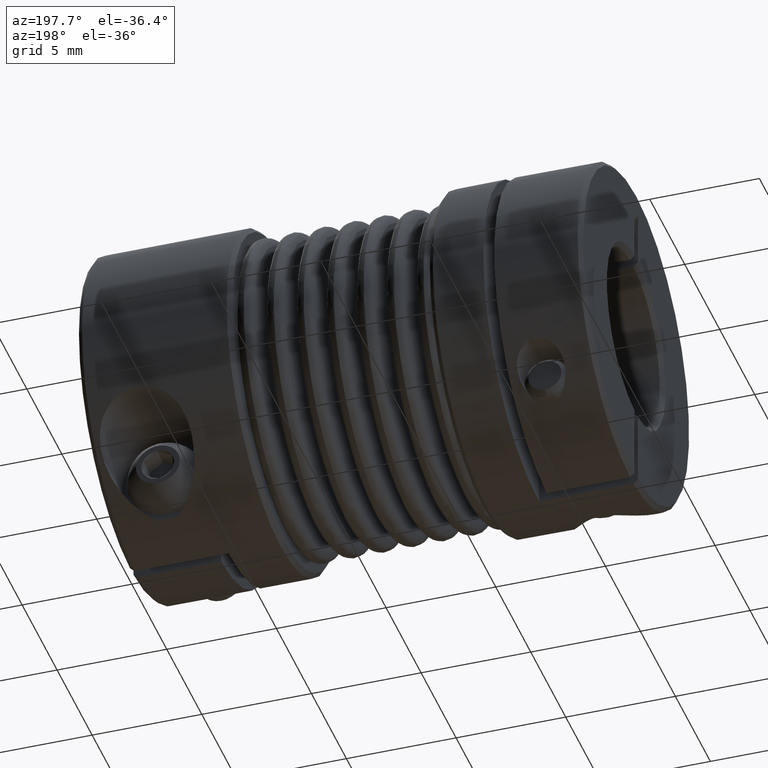
[diagram: clean part render]
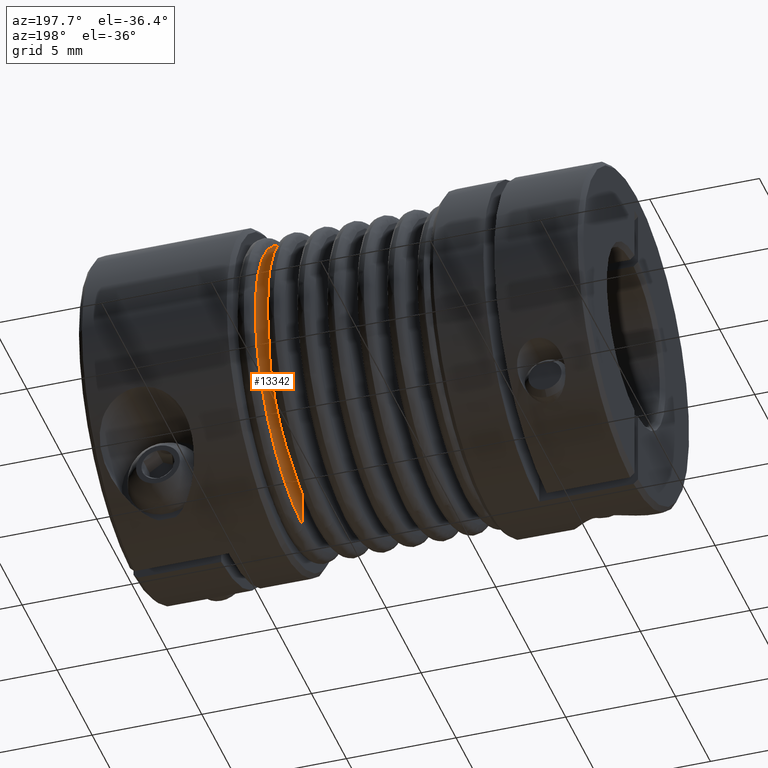
[diagram: same view with one face highlighted and labeled with its STEP entity id]
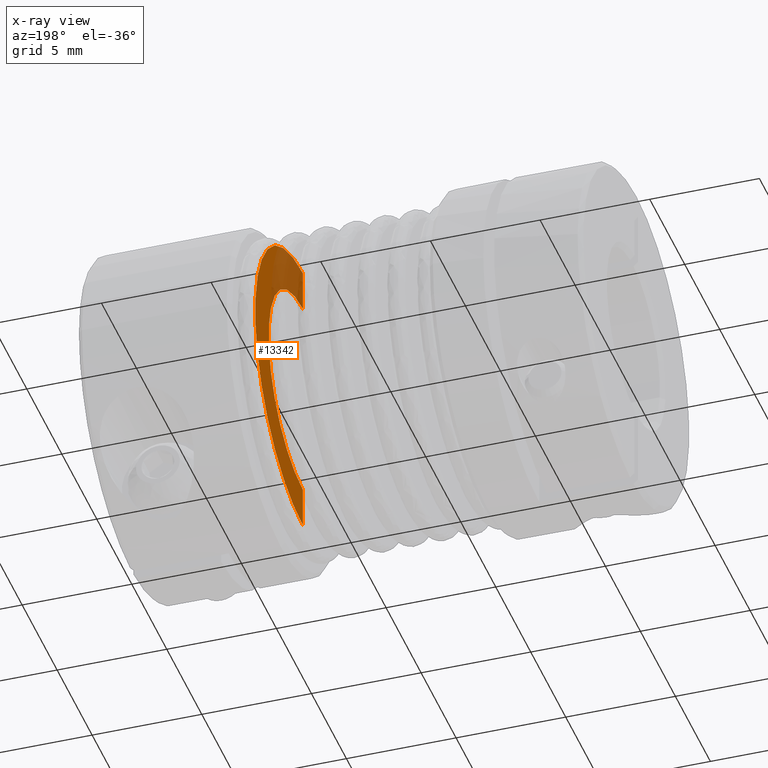
[diagram: x-ray of the same camera — body ghosted, the highlighted face saturated]
A machine part, auxiliary view. The second image highlights one B-rep face of the part: STEP entity #13342.
The next image is the same camera in x-ray: the body ghosted, the highlighted face saturated — about 26% of this face is hidden behind the body in this view.
In plain terms, the highlighted conical surface has half-angle 89.999 deg.
Its self-contained STEP definition (entity closure, byte-faithful):
#966 = CARTESIAN_POINT ( 'NONE',  ( -0.3070846456730739749, 3.671030349544872102E-17, -0.1921262747604429999 ) ) ;
#1792 = DIRECTION ( 'NONE',  ( 0.0000000000000000000, -7.427073164652317819E-17, 1.000000000000000000 ) ) ;
#1980 = ORIENTED_EDGE ( 'NONE', *, *, #17447, .F. ) ;
#2093 = VERTEX_POINT ( 'NONE', #966 ) ;
#2667 = CARTESIAN_POINT ( 'NONE',  ( -0.3070846456730739749, -8.523311103377621583E-18, 4.761965196982405170E-18 ) ) ;
#3944 = CARTESIAN_POINT ( 'NONE',  ( -0.3070866141678884609, 4.414587635762420378E-17, -0.2677161253265714635 ) ) ;
#4213 = AXIS2_PLACEMENT_3D ( 'NONE', #2667, #20231, #17092 ) ;
#4416 = VERTEX_POINT ( 'NONE', #9939 ) ;
#4456 = FACE_OUTER_BOUND ( 'NONE', #9917, .T. ) ;
#4938 = AXIS2_PLACEMENT_3D ( 'NONE', #14373, #14276, #20686 ) ;
#5676 = ORIENTED_EDGE ( 'NONE', *, *, #9606, .F. ) ;
#5917 = ORIENTED_EDGE ( 'NONE', *, *, #19515, .T. ) ;
#8030 = CARTESIAN_POINT ( 'NONE',  ( -0.3070866141678883499, -2.840683824125964989E-17, 0.2677161253211668979 ) ) ;
#8831 = VECTOR ( 'NONE', #14442, 39.37007874015748143 ) ;
#8849 = VECTOR ( 'NONE', #18787, 39.37007874015748143 ) ;
#9606 = EDGE_CURVE ( 'NONE', #4416, #2093, #13288, .T. ) ;
#9917 = EDGE_LOOP ( 'NONE', ( #1980, #5676, #5917, #13170 ) ) ;
#9939 = CARTESIAN_POINT ( 'NONE',  ( -0.3070846456730739749, -2.279267009835666262E-17, 0.1921262747604429999 ) ) ;
#9995 = AXIS2_PLACEMENT_3D ( 'NONE', #10869, #10763, #1792 ) ;
#10689 = CARTESIAN_POINT ( 'NONE',  ( -0.3070866141678884609, -2.840683824163736635E-17, 0.2677161253262526075 ) ) ;
#10763 = DIRECTION ( 'NONE',  ( -1.000000000000000000, -2.775557561562892584E-17, 1.550701171185240690E-17 ) ) ;
#10869 = CARTESIAN_POINT ( 'NONE',  ( -0.3070866141678883499, -8.523365740084289401E-18, 4.761995722454545591E-18 ) ) ;
#10990 = CARTESIAN_POINT ( 'NONE',  ( -0.3070866141678883499, 4.414587635656093638E-17, -0.2677161253211668979 ) ) ;
#12372 = LINE ( 'NONE', #10990, #8849 ) ;
#12600 = EDGE_CURVE ( 'NONE', #19681, #13900, #16028, .T. ) ;
#13170 = ORIENTED_EDGE ( 'NONE', *, *, #12600, .F. ) ;
#13288 = CIRCLE ( 'NONE', #4213, 0.1921262747604429999 ) ;
#13342 = ADVANCED_FACE ( 'NONE', ( #4456 ), #16716, .F. ) ;
#13900 = VERTEX_POINT ( 'NONE', #10689 ) ;
#14276 = DIRECTION ( 'NONE',  ( 1.000000000000000000, 2.775557561562892584E-17, -1.550701171185240690E-17 ) ) ;
#14373 = CARTESIAN_POINT ( 'NONE',  ( -0.3070866141678884609, -8.523365740084294024E-18, 4.761995722454547132E-18 ) ) ;
#14442 = DIRECTION ( 'NONE',  ( -2.604178734432187093E-05, -7.427145442613671881E-17, 0.9999999996609125752 ) ) ;
#16028 = CIRCLE ( 'NONE', #4938, 0.2677161253261835516 ) ;
#16033 = LINE ( 'NONE', #8030, #8831 ) ;
#16716 = CONICAL_SURFACE ( 'NONE', #9995, 0.2677161253211668979, 1.570770285007549338 ) ;
#17092 = DIRECTION ( 'NONE',  ( 0.0000000000000000000, -7.427073164652317819E-17, 1.000000000000000000 ) ) ;
#17447 = EDGE_CURVE ( 'NONE', #2093, #19681, #12372, .T. ) ;
#18787 = DIRECTION ( 'NONE',  ( -2.604178734435288588E-05, 1.967346886897501940E-16, -0.9999999996609125752 ) ) ;
#19515 = EDGE_CURVE ( 'NONE', #4416, #13900, #16033, .T. ) ;
#19681 = VERTEX_POINT ( 'NONE', #3944 ) ;
#20231 = DIRECTION ( 'NONE',  ( -1.000000000000000000, -2.775557561562892584E-17, 1.550701171185240690E-17 ) ) ;
#20686 = DIRECTION ( 'NONE',  ( 0.0000000000000000000, -7.427073164652317819E-17, 1.000000000000000000 ) ) ;